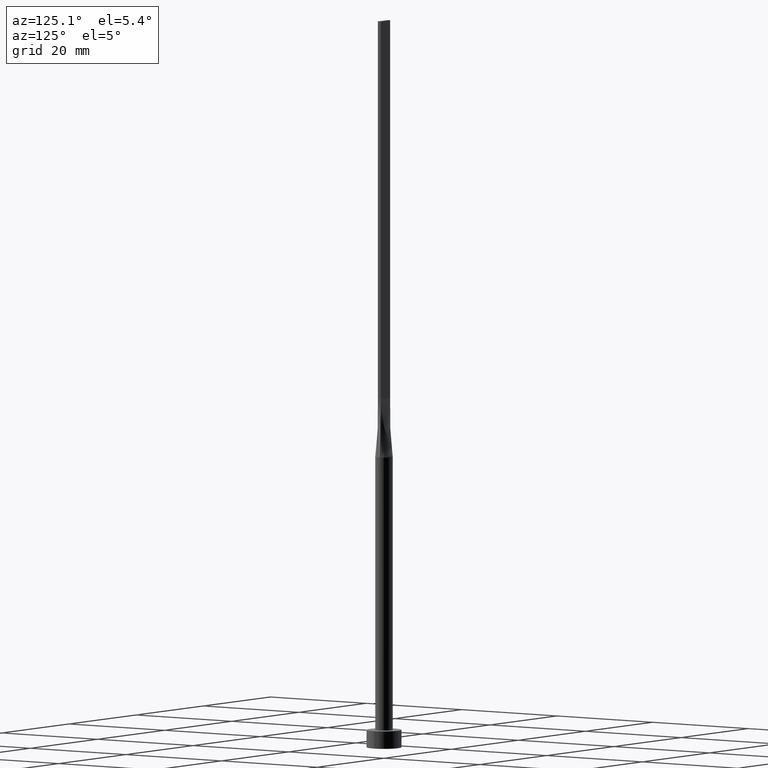
[diagram: clean part render]
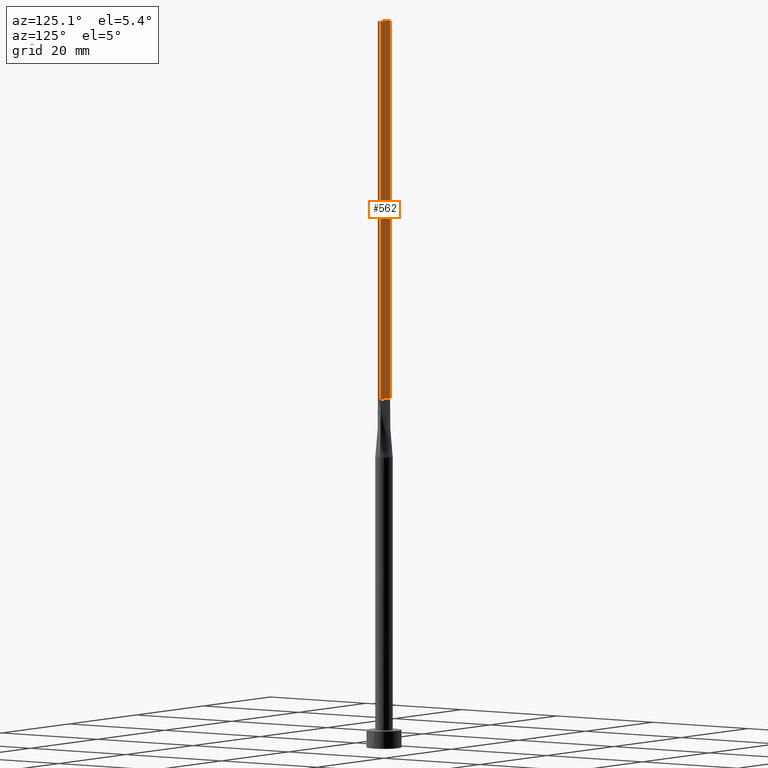
[diagram: same view with one face highlighted and labeled with its STEP entity id]
A machine part, auxiliary view. The second image highlights one B-rep face of the part: STEP entity #562.
In plain terms, the highlighted planar face has unit normal (0, -1, 0).
Its self-contained STEP definition (entity closure, byte-faithful):
#10 = VECTOR ( 'NONE', #210, 1000.000000000000000 ) ;
#19 = CARTESIAN_POINT ( 'NONE',  ( 1.399999999999999689, 0.3000000000000002109, 125.0000000000000000 ) ) ;
#28 = CARTESIAN_POINT ( 'NONE',  ( 1.399999999999999689, 0.3000000000000002109, 125.0000000000000000 ) ) ;
#43 = EDGE_CURVE ( 'NONE', #208, #387, #396, .T. ) ;
#47 = CARTESIAN_POINT ( 'NONE',  ( 1.399999999999999689, 0.3000000000000002109, 125.0000000000000000 ) ) ;
#57 = CARTESIAN_POINT ( 'NONE',  ( -1.399999999999999689, 0.3000000000000002109, 60.00000000000000711 ) ) ;
#60 = AXIS2_PLACEMENT_3D ( 'NONE', #388, #263, #259 ) ;
#68 = PLANE ( 'NONE',  #60 ) ;
#71 = FACE_OUTER_BOUND ( 'NONE', #470, .T. ) ;
#97 = CARTESIAN_POINT ( 'NONE',  ( -1.399999999999999689, 0.3000000000000002109, 125.0000000000000000 ) ) ;
#108 = ORIENTED_EDGE ( 'NONE', *, *, #43, .T. ) ;
#135 = VERTEX_POINT ( 'NONE', #97 ) ;
#142 = ORIENTED_EDGE ( 'NONE', *, *, #182, .F. ) ;
#155 = VERTEX_POINT ( 'NONE', #47 ) ;
#182 = EDGE_CURVE ( 'NONE', #135, #387, #567, .T. ) ;
#200 = DIRECTION ( 'NONE',  ( -1.000000000000000000, 0.000000000000000000, 0.000000000000000000 ) ) ;
#208 = VERTEX_POINT ( 'NONE', #478 ) ;
#210 = DIRECTION ( 'NONE',  ( -0.000000000000000000, -0.000000000000000000, -1.000000000000000000 ) ) ;
#225 = DIRECTION ( 'NONE',  ( -1.000000000000000000, -0.000000000000000000, -0.000000000000000000 ) ) ;
#259 = DIRECTION ( 'NONE',  ( 0.000000000000000000, -0.000000000000000000, -1.000000000000000000 ) ) ;
#263 = DIRECTION ( 'NONE',  ( 0.000000000000000000, -1.000000000000000000, 0.000000000000000000 ) ) ;
#299 = CARTESIAN_POINT ( 'NONE',  ( -1.399999999999999689, 0.3000000000000002109, 125.0000000000000000 ) ) ;
#319 = EDGE_CURVE ( 'NONE', #155, #135, #426, .T. ) ;
#332 = ORIENTED_EDGE ( 'NONE', *, *, #319, .F. ) ;
#375 = ORIENTED_EDGE ( 'NONE', *, *, #539, .T. ) ;
#387 = VERTEX_POINT ( 'NONE', #57 ) ;
#388 = CARTESIAN_POINT ( 'NONE',  ( 1.399999999999999689, 0.3000000000000002109, 125.0000000000000000 ) ) ;
#396 = LINE ( 'NONE', #485, #517 ) ;
#426 = LINE ( 'NONE', #19, #568 ) ;
#428 = VECTOR ( 'NONE', #571, 1000.000000000000000 ) ;
#470 = EDGE_LOOP ( 'NONE', ( #108, #142, #332, #375 ) ) ;
#478 = CARTESIAN_POINT ( 'NONE',  ( 1.399999999999999689, 0.3000000000000002109, 60.00000000000000711 ) ) ;
#485 = CARTESIAN_POINT ( 'NONE',  ( -1.399999999999999689, 0.3000000000000002109, 60.00000000000000711 ) ) ;
#517 = VECTOR ( 'NONE', #225, 1000.000000000000000 ) ;
#539 = EDGE_CURVE ( 'NONE', #155, #208, #572, .T. ) ;
#562 = ADVANCED_FACE ( 'NONE', ( #71 ), #68, .F. ) ;
#567 = LINE ( 'NONE', #299, #428 ) ;
#568 = VECTOR ( 'NONE', #200, 1000.000000000000000 ) ;
#571 = DIRECTION ( 'NONE',  ( -0.000000000000000000, -0.000000000000000000, -1.000000000000000000 ) ) ;
#572 = LINE ( 'NONE', #28, #10 ) ;